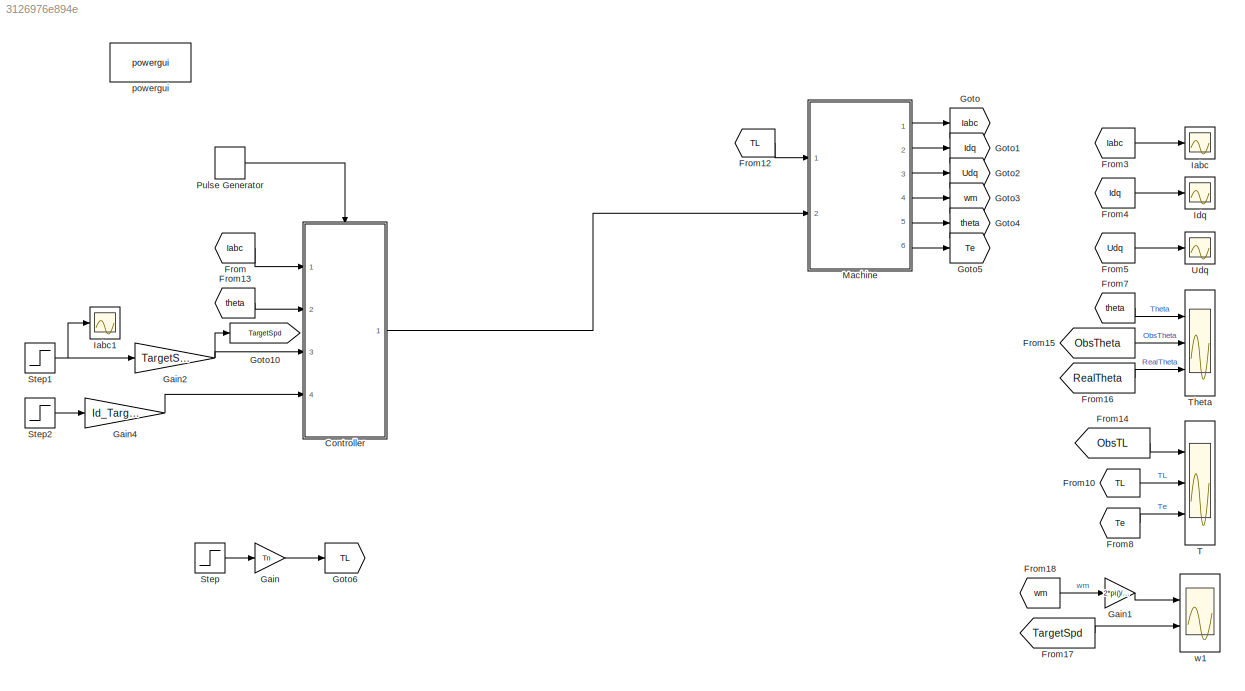
MODEL slx_3126976e894e
KIND model
CONFIG AbsTol = auto
CONFIG EnableMultiTasking = off
CONFIG FixedStep = auto
CONFIG MaxStep = 1e-6
CONFIG MinStep = auto
CONFIG RelTol = 1e-3
CONFIG SampleTimeConstraint = Unconstrained
CONFIG SolverName = ode45
CONFIG StartTime = 0.0
CONFIG StopTime = 0.2
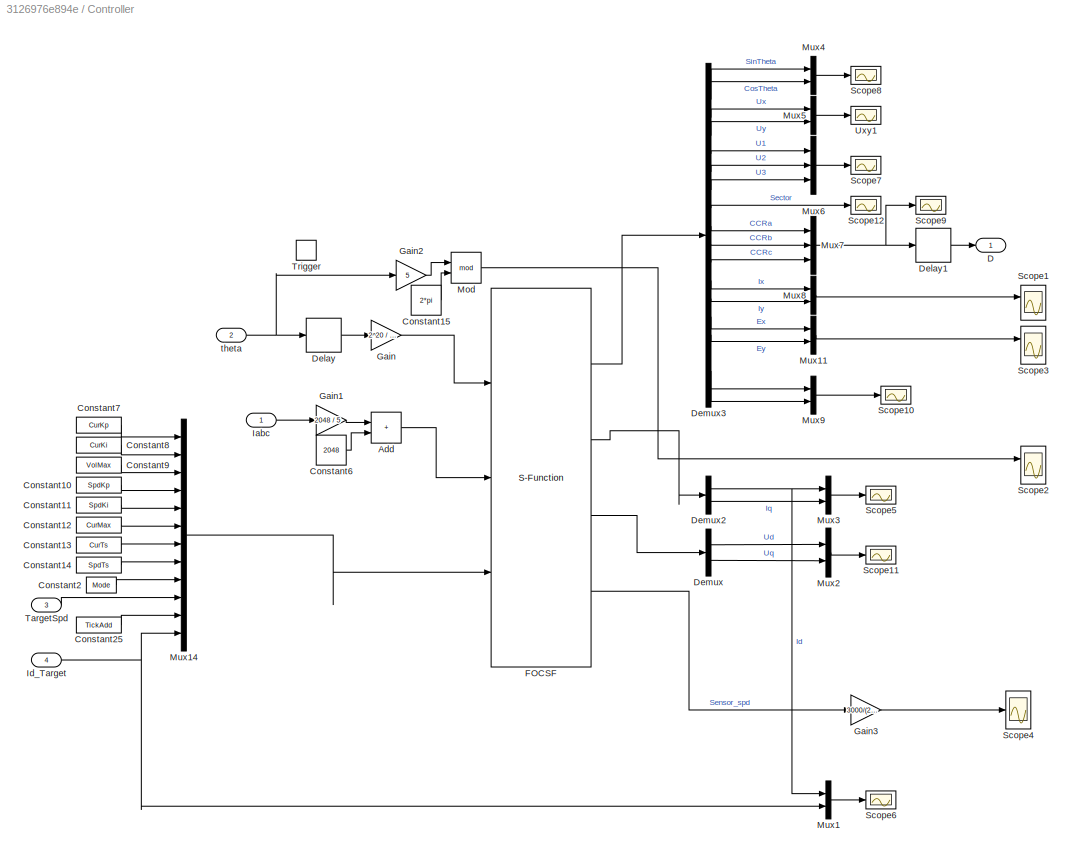
BLOCK [SubSystem] Controller
  Ports = [4, 1, 0, 1]
  RequestExecContextInheritance = off
  TreatAsAtomicUnit = on
BLOCK [Sum] Controller/Add
  IconShape = rectangular
  Ports = [2, 1]
BLOCK [Constant] Controller/Constant10
  Value = SpdKp
BLOCK [Constant] Controller/Constant11
  Value = SpdKi
BLOCK [Constant] Controller/Constant12
  Value = CurMax
BLOCK [Constant] Controller/Constant13
  Value = CurTs
BLOCK [Constant] Controller/Constant14
  Value = SpdTs
BLOCK [Constant] Controller/Constant15
  Value = 2*pi
BLOCK [Constant] Controller/Constant2
  Value = Mode
BLOCK [Constant] Controller/Constant25
  Value = TickAdd
BLOCK [Constant] Controller/Constant6
  Value = 2048
BLOCK [Constant] Controller/Constant7
  Value = CurKp
BLOCK [Constant] Controller/Constant8
  Value = CurKi
BLOCK [Constant] Controller/Constant9
  Value = VolMax
BLOCK [Outport] Controller/D
  VectorParamsAs1DForOutWhenUnconnected = off
BLOCK [Delay] Controller/Delay
  DelayLength = 1
  InputPortMap = u0
  Ports = [1, 1]
BLOCK [Delay] Controller/Delay1
  DelayLength = 1
  InputPortMap = u0
  Ports = [1, 1]
BLOCK [Demux] Controller/Demux
  Outputs = 2
  Ports = [1, 2]
BLOCK [Demux] Controller/Demux2
  Outputs = 2
  Ports = [1, 2]
BLOCK [Demux] Controller/Demux3
  Outputs = 18
  Ports = [1, 18]
BLOCK [S-Function] Controller/FOCSF
  EnableBusSupport = off
  FunctionName = FOCSF_Part2
  Parameters = Np Udc Ls Rs Kt J Ld Lq
  Ports = [3, 4]
  SFcnIsStateOwnerBlock = off
  SFunctionDeploymentMode = off
BLOCK [Gain] Controller/Gain
  Gain = 2^20 / (2 * pi())
BLOCK [Gain] Controller/Gain1
  Gain = 2048 / 5
BLOCK [Gain] Controller/Gain2
  Gain = 5
BLOCK [Gain] Controller/Gain3
  Gain = 3000/(2*pi()*50)
BLOCK [Inport] Controller/Iabc
BLOCK [Inport] Controller/Id_Target
  Port = 4
BLOCK [Math] Controller/Mod
  Operator = mod
  Ports = [2, 1]
BLOCK [Mux] Controller/Mux1
  DisplayOption = bar
  Inputs = 2
  Ports = [2, 1]
BLOCK [Mux] Controller/Mux11
  DisplayOption = bar
  Inputs = 2
  Ports = [2, 1]
BLOCK [Mux] Controller/Mux14
  DisplayOption = bar
  Inputs = 12
  Ports = [12, 1]
BLOCK [Mux] Controller/Mux2
  DisplayOption = bar
  Inputs = 2
  Ports = [2, 1]
BLOCK [Mux] Controller/Mux3
  DisplayOption = bar
  Inputs = 2
  Ports = [2, 1]
BLOCK [Mux] Controller/Mux4
  DisplayOption = bar
  Inputs = 2
  Ports = [2, 1]
BLOCK [Mux] Controller/Mux5
  DisplayOption = bar
  Inputs = 2
  Ports = [2, 1]
BLOCK [Mux] Controller/Mux6
  DisplayOption = bar
  Inputs = 3
  Ports = [3, 1]
BLOCK [Mux] Controller/Mux7
  DisplayOption = bar
  Inputs = 3
  Ports = [3, 1]
BLOCK [Mux] Controller/Mux8
  DisplayOption = bar
  Inputs = 2
  Ports = [2, 1]
BLOCK [Mux] Controller/Mux9
  DisplayOption = bar
  Inputs = 2
  Ports = [2, 1]
BLOCK [Scope] Controller/Scope1
  Floating = off
  NumInputPorts = 2
  Ports = [2]
  ScopeSpecificationString = Simulink.scopes.TimeScopeBlockCfg('CurrentConfiguration', extmgr.ConfigurationSet(extmgr.Configuration('Core','General UI',true),extmgr.Configuration('Core','Source UI',true),extmgr.Configuration('Sources','WiredSimulink',true,'DataLoggingVariableName','ScopeData1'),extmgr.Configuration('Visuals','Time Domain',true,'SerializedDisplays',{struct('MinYLimReal','-1.19518','MaxYLimReal','1.20908','YLab...<+1742ch>
BLOCK [Scope] Controller/Scope10
  Floating = off
  NumInputPorts = 1
  Ports = [1]
  ScopeSpecificationString = Simulink.scopes.TimeScopeBlockCfg('CurrentConfiguration', extmgr.ConfigurationSet(extmgr.Configuration('Core','General UI',true),extmgr.Configuration('Core','Source UI',true),extmgr.Configuration('Sources','WiredSimulink',true,'DataLoggingVariableName','ScopeData1'),extmgr.Configuration('Visuals','Time Domain',true,'SerializedDisplays',{struct('MinYLimReal','-2.62046','MaxYLimReal','12.3498','YLab...<+1574ch>
BLOCK [Scope] Controller/Scope11
  Floating = off
  NumInputPorts = 1
  Ports = [1]
  ScopeSpecificationString = Simulink.scopes.TimeScopeBlockCfg('CurrentConfiguration', extmgr.ConfigurationSet(extmgr.Configuration('Core','General UI',true),extmgr.Configuration('Core','Source UI',true),extmgr.Configuration('Sources','WiredSimulink',true,'DataLoggingVariableName','ScopeData9'),extmgr.Configuration('Visuals','Time Domain',true,'SerializedDisplays',{struct('MinYLimReal','-2.88359','MaxYLimReal','13.78925','YLa...<+1741ch>
BLOCK [Scope] Controller/Scope12
  Floating = off
  NumInputPorts = 1
  Ports = [1]
  ScopeSpecificationString = Simulink.scopes.TimeScopeBlockCfg('CurrentConfiguration', extmgr.ConfigurationSet(extmgr.Configuration('Core','General UI',true),extmgr.Configuration('Core','Source UI',true),extmgr.Configuration('Sources','WiredSimulink',true,'DataLoggingVariableName','ScopeData4'),extmgr.Configuration('Visuals','Time Domain',true,'SerializedDisplays',{struct('MinYLimReal','0.9','MaxYLimReal','1.1','YLabelReal','...<+1402ch>
BLOCK [Scope] Controller/Scope2
  Floating = off
  NumInputPorts = 2
  Ports = [2]
  ScopeSpecificationString = Simulink.scopes.TimeScopeBlockCfg('CurrentConfiguration', extmgr.ConfigurationSet(extmgr.Configuration('Core','General UI',true),extmgr.Configuration('Core','Source UI',true),extmgr.Configuration('Sources','WiredSimulink',true,'DataLoggingVariableName','ThetaE','DataLogging',true),extmgr.Configuration('Visuals','Time Domain',true,'SerializedDisplays',{struct('MinYLimReal','-0.78537','MaxYLimReal',...<+1766ch>
BLOCK [Scope] Controller/Scope3
  Floating = off
  NumInputPorts = 2
  Ports = [2]
  ScopeSpecificationString = Simulink.scopes.TimeScopeBlockCfg('CurrentConfiguration', extmgr.ConfigurationSet(extmgr.Configuration('Core','General UI',true),extmgr.Configuration('Core','Source UI',true),extmgr.Configuration('Sources','WiredSimulink',true,'DataLoggingVariableName','ScopeData3','DataLogging',true),extmgr.Configuration('Visuals','Time Domain',true,'SerializedDisplays',{struct('MinYLimReal','-23.03112','MaxYLimR...<+1780ch>
BLOCK [Scope] Controller/Scope4
  Floating = off
  NumInputPorts = 1
  Ports = [1]
  ScopeSpecificationString = Simulink.scopes.TimeScopeBlockCfg('CurrentConfiguration', extmgr.ConfigurationSet(extmgr.Configuration('Core','General UI',true),extmgr.Configuration('Core','Source UI',true),extmgr.Configuration('Sources','WiredSimulink',true,'DataLoggingVariableName','SpdE','DataLogging',true,'DataLoggingSaveFormat','Array'),extmgr.Configuration('Visuals','Time Domain',true,'SerializedDisplays',{struct('MinYLimR...<+1807ch>
BLOCK [Scope] Controller/Scope5
  Floating = off
  NumInputPorts = 1
  Ports = [1]
  ScopeSpecificationString = Simulink.scopes.TimeScopeBlockCfg('CurrentConfiguration', extmgr.ConfigurationSet(extmgr.Configuration('Core','General UI',true),extmgr.Configuration('Core','Source UI',true),extmgr.Configuration('Sources','WiredSimulink',true,'DataLoggingVariableName','ScopeData1'),extmgr.Configuration('Visuals','Time Domain',true,'SerializedDisplays',{struct('MinYLimReal','-0.14901','MaxYLimReal','1.24268','YLab...<+1534ch>
BLOCK [Scope] Controller/Scope6
  Floating = off
  NumInputPorts = 1
  Ports = [1]
  ScopeSpecificationString = Simulink.scopes.TimeScopeBlockCfg('CurrentConfiguration', extmgr.ConfigurationSet(extmgr.Configuration('Core','General UI',true),extmgr.Configuration('Core','Source UI',true),extmgr.Configuration('Sources','WiredSimulink',true,'DataLoggingVariableName','TargetId','DataLogging',true,'DataLoggingSaveFormat','Array'),extmgr.Configuration('Visuals','Time Domain',true,'SerializedDisplays',{struct('MinY...<+1616ch>
BLOCK [Scope] Controller/Scope7
  Floating = off
  NumInputPorts = 1
  Ports = [1]
  ScopeSpecificationString = Simulink.scopes.TimeScopeBlockCfg('CurrentConfiguration', extmgr.ConfigurationSet(extmgr.Configuration('Core','General UI',true),extmgr.Configuration('Core','Source UI',true),extmgr.Configuration('Sources','WiredSimulink',true,'DataLoggingVariableName','ScopeData3'),extmgr.Configuration('Visuals','Time Domain',true,'SerializedDisplays',{struct('MinYLimReal','-10.825','MaxYLimReal','10.825','YLabel...<+1557ch>
BLOCK [Scope] Controller/Scope8
  Floating = off
  NumInputPorts = 1
  Ports = [1]
  ScopeSpecificationString = Simulink.scopes.TimeScopeBlockCfg('CurrentConfiguration', extmgr.ConfigurationSet(extmgr.Configuration('Core','General UI',true),extmgr.Configuration('Core','Source UI',true),extmgr.Configuration('Sources','WiredSimulink',true,'DataLoggingVariableName','ScopeData2'),extmgr.Configuration('Visuals','Time Domain',true,'SerializedDisplays',{struct('MinYLimReal','-1.25','MaxYLimReal','1.25','YLabelReal...<+1510ch>
BLOCK [Scope] Controller/Scope9
  Floating = off
  NumInputPorts = 1
  Ports = [1]
  ScopeSpecificationString = Simulink.scopes.TimeScopeBlockCfg('CurrentConfiguration', extmgr.ConfigurationSet(extmgr.Configuration('Core','General UI',true),extmgr.Configuration('Core','Source UI',true),extmgr.Configuration('Sources','WiredSimulink',true,'DataLoggingVariableName','ScopeData3'),extmgr.Configuration('Visuals','Time Domain',true,'SerializedDisplays',{struct('MinYLimReal','-0.08203','MaxYLimReal','0.73827','YLab...<+1545ch>
BLOCK [Inport] Controller/TargetSpd
  Port = 3
BLOCK [TriggerPort] Controller/Trigger
  Ports = []
  StatesWhenEnabling = held
  VariantControl = Variant
BLOCK [Scope] Controller/Uxy1
  Floating = off
  NumInputPorts = 1
  Ports = [1]
  ScopeSpecificationString = Simulink.scopes.TimeScopeBlockCfg('CurrentConfiguration', extmgr.ConfigurationSet(extmgr.Configuration('Core','General UI',true,'FigureColor',[1 1 1]),extmgr.Configuration('Core','Source UI',true),extmgr.Configuration('Sources','WiredSimulink',true,'DataLoggingVariableName','ScopeData1'),extmgr.Configuration('Visuals','Time Domain',true,'SerializedDisplays',{struct('MinYLimReal','-12.5','MaxYLimRe...<+2094ch>
BLOCK [Inport] Controller/theta
  Port = 2
BLOCK [From] From
  GotoTag = Iabc
BLOCK [From] From10
  GotoTag = TL
  TagVisibility = global
BLOCK [From] From12
  GotoTag = TL
  TagVisibility = global
BLOCK [From] From13
  GotoTag = theta
BLOCK [From] From14
  GotoTag = ObsTL
BLOCK [From] From15
  GotoTag = ObsTheta
BLOCK [From] From16
  GotoTag = RealTheta
BLOCK [From] From17
  GotoTag = TargetSpd
BLOCK [From] From18
  GotoTag = wm
BLOCK [From] From3
  GotoTag = Iabc
BLOCK [From] From4
  GotoTag = Idq
BLOCK [From] From5
  GotoTag = Udq
BLOCK [From] From7
  GotoTag = theta
BLOCK [From] From8
  GotoTag = Te
BLOCK [Gain] Gain
  Gain = Tn
BLOCK [Gain] Gain1
  Gain = 2*pi()/60
BLOCK [Gain] Gain2
  Gain = TargetSpd
BLOCK [Gain] Gain4
  Gain = Id_Target
BLOCK [Goto] Goto
  GotoTag = Iabc
BLOCK [Goto] Goto1
  GotoTag = Idq
BLOCK [Goto] Goto10
  GotoTag = TargetSpd
BLOCK [Goto] Goto2
  GotoTag = Udq
BLOCK [Goto] Goto3
  GotoTag = wm
BLOCK [Goto] Goto4
  GotoTag = theta
BLOCK [Goto] Goto5
  GotoTag = Te
BLOCK [Goto] Goto6
  GotoTag = TL
  TagVisibility = global
BLOCK [Scope] Iabc
  Floating = off
  NumInputPorts = 1
  Ports = [1]
  ScopeSpecificationString = Simulink.scopes.TimeScopeBlockCfg('CurrentConfiguration', extmgr.ConfigurationSet(extmgr.Configuration('Core','General UI',true),extmgr.Configuration('Core','Source UI',true),extmgr.Configuration('Sources','WiredSimulink',true),extmgr.Configuration('Visuals','Time Domain',true,'SerializedDisplays',{struct('MinYLimReal','-1.28948','MaxYLimReal','1.29094','YLabelReal','','MinYLimMag','0.00000','MaxY...<+1551ch>
BLOCK [Scope] Iabc1
  Floating = off
  NumInputPorts = 1
  Ports = [1]
  ScopeSpecificationString = Simulink.scopes.TimeScopeBlockCfg('CurrentConfiguration', extmgr.ConfigurationSet(extmgr.Configuration('Core','General UI',true),extmgr.Configuration('Core','Source UI',true),extmgr.Configuration('Sources','WiredSimulink',true,'DataLoggingVariableName','ScopeData2'),extmgr.Configuration('Visuals','Time Domain',true,'SerializedDisplays',{struct('MinYLimReal','-0.12498','MaxYLimReal','1.12486','YLab...<+1499ch>
BLOCK [Scope] Idq
  Floating = off
  NumInputPorts = 1
  Ports = [1]
  ScopeSpecificationString = Simulink.scopes.TimeScopeBlockCfg('CurrentConfiguration', extmgr.ConfigurationSet(extmgr.Configuration('Core','General UI',true),extmgr.Configuration('Core','Source UI',true),extmgr.Configuration('Sources','WiredSimulink',true,'DataLoggingVariableName','ScopeData1'),extmgr.Configuration('Visuals','Time Domain',true,'SerializedDisplays',{struct('MinYLimReal','-0.15991','MaxYLimReal','1.13341','YLab...<+1557ch>
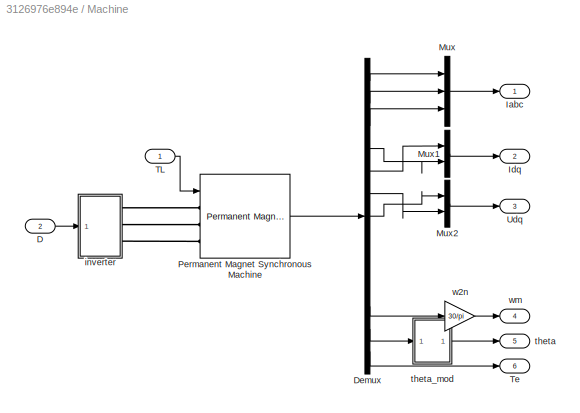
BLOCK [SubSystem] Machine
  Ports = [2, 6]
  RequestExecContextInheritance = off
BLOCK [Inport] Machine/D
  Port = 2
BLOCK [Demux] Machine/Demux
  Outputs = 13
  Ports = [1, 13]
BLOCK [Outport] Machine/Iabc
  VectorParamsAs1DForOutWhenUnconnected = off
BLOCK [Outport] Machine/Idq
  Port = 2
  VectorParamsAs1DForOutWhenUnconnected = off
BLOCK [Mux] Machine/Mux
  DisplayOption = bar
  Inputs = 3
  Ports = [3, 1]
BLOCK [Mux] Machine/Mux1
  DisplayOption = bar
  Inputs = 2
  Ports = [2, 1]
BLOCK [Mux] Machine/Mux2
  DisplayOption = bar
  Inputs = 2
  Ports = [2, 1]
BLOCK [Reference] Machine/Permanent Magnet Synchronous Machine  REF=spsPermanentMagnetSynchronousMachineLib/Permanent Magnet
Synchronous Machine
  Ports = [1, 1, 0, 0, 0, 3]
  SourceBlock = spsPermanentMagnetSynchronousMachineLib/Permanent Magnet\nSynchronous Machine
  SourceProductBaseCode = PS
  SourceType = Permanent Magnet Synchronous Machine
BLOCK [Inport] Machine/TL
BLOCK [Outport] Machine/Te
  Port = 6
  VectorParamsAs1DForOutWhenUnconnected = off
BLOCK [Outport] Machine/Udq
  Port = 3
  VectorParamsAs1DForOutWhenUnconnected = off
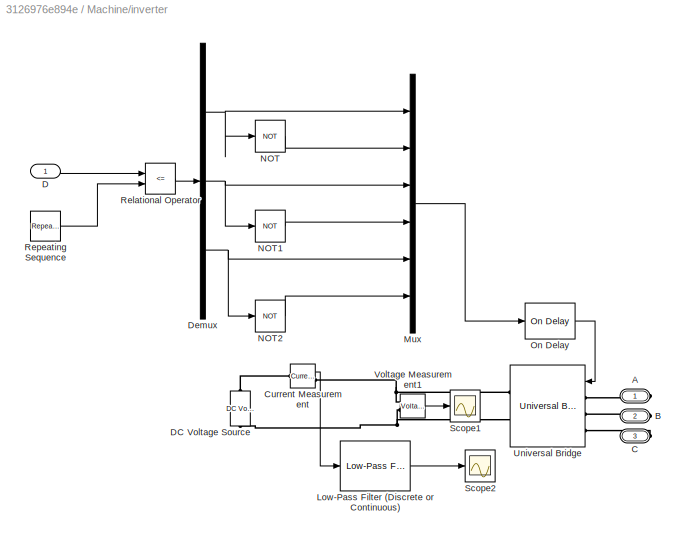
BLOCK [SubSystem] Machine/inverter
  Ports = [1, 0, 0, 0, 0, 0, 3]
  RequestExecContextInheritance = off
BLOCK [PMIOPort] Machine/inverter/A
  Side = Right
BLOCK [PMIOPort] Machine/inverter/B
  Port = 2
  Side = Right
BLOCK [PMIOPort] Machine/inverter/C
  Port = 3
  Side = Right
BLOCK [Reference] Machine/inverter/Current Measurement  REF=spsCurrentMeasurementLib/Current Measurement
  Ports = [0, 1, 0, 0, 0, 1, 1]
  SourceBlock = spsCurrentMeasurementLib/Current Measurement
  SourceProductBaseCode = PS
  SourceType = Current Measurement
  UserDataPersistent = on
BLOCK [Inport] Machine/inverter/D
BLOCK [Reference] Machine/inverter/DC Voltage Source  REF=spsDCVoltageSourceLib/DC Voltage Source
  NameLocation = right
  Ports = [0, 0, 0, 0, 0, 1, 1]
  SourceBlock = spsDCVoltageSourceLib/DC Voltage Source
  SourceProductBaseCode = PS
  SourceType = DC Voltage Source
BLOCK [Demux] Machine/inverter/Demux
  Outputs = 3
  Ports = [1, 3]
BLOCK [Reference] Machine/inverter/Low-Pass Filter (Discrete or Continuous)  REF=eeGeneralControl/Low-Pass Filter
(Discrete or Continuous)
  Ports = [1, 1]
  SourceBlock = eeGeneralControl/Low-Pass Filter\n(Discrete or Continuous)
  SourceProductBaseCode = PS
  SourceType = Low-Pass Filter (Discrete or Continuous)
BLOCK [Mux] Machine/inverter/Mux
  DisplayOption = bar
  Inputs = 6
  Ports = [6, 1]
BLOCK [Logic] Machine/inverter/NOT
  AllPortsSameDT = off
  IconShape = distinctive
  Operator = NOT
  OutDataTypeStr = boolean
  Ports = [1, 1]
BLOCK [Logic] Machine/inverter/NOT1
  AllPortsSameDT = off
  IconShape = distinctive
  Operator = NOT
  OutDataTypeStr = boolean
  Ports = [1, 1]
BLOCK [Logic] Machine/inverter/NOT2
  AllPortsSameDT = off
  IconShape = distinctive
  Operator = NOT
  OutDataTypeStr = boolean
  Ports = [1, 1]
BLOCK [Reference] Machine/inverter/On Delay  REF=spsOnDelayLib/On Delay
  Ports = [1, 1]
  SourceBlock = spsOnDelayLib/On Delay
  SourceProductBaseCode = PS
  SourceType = On/Off Delay
BLOCK [RelationalOperator] Machine/inverter/Relational Operator
  InputSameDT = off
  Operator = <=
  OutDataTypeStr = boolean
  Ports = [2, 1]
  RndMeth = Simplest
BLOCK [Reference] Machine/inverter/Repeating Sequence  REF=simulink/Sources/Repeating
Sequence
  Ports = [0, 1]
  SourceBlock = simulink/Sources/Repeating\nSequence
  SourceProductBaseCode = SL
  SourceType = Repeating table
BLOCK [Scope] Machine/inverter/Scope1
  Floating = off
  NumInputPorts = 1
  Ports = [1]
  ScopeSpecificationString = Simulink.scopes.TimeScopeBlockCfg('CurrentConfiguration', extmgr.ConfigurationSet(extmgr.Configuration('Core','General UI',true),extmgr.Configuration('Core','Source UI',true),extmgr.Configuration('Sources','WiredSimulink',true,'DataLoggingVariableName','ScopeData1'),extmgr.Configuration('Visuals','Time Domain',true,'SerializedDisplays',{struct('MinYLimReal','-31.67772','MaxYLimReal','601.21776','Y...<+1489ch>
BLOCK [Scope] Machine/inverter/Scope2
  Floating = off
  NumInputPorts = 1
  Ports = [1]
  ScopeSpecificationString = Simulink.scopes.TimeScopeBlockCfg('CurrentConfiguration', extmgr.ConfigurationSet(extmgr.Configuration('Core','General UI',true),extmgr.Configuration('Core','Source UI',true),extmgr.Configuration('Sources','WiredSimulink',true,'DataLoggingVariableName','ScopeData5'),extmgr.Configuration('Visuals','Time Domain',true,'SerializedDisplays',{struct('MinYLimReal','0.66833','MaxYLimReal','0.67508','YLabe...<+1474ch>
BLOCK [Reference] Machine/inverter/Universal Bridge  REF=spsUniversalBridgeLib/Universal Bridge
  Ports = [1, 0, 0, 0, 0, 3, 2]
  SourceBlock = spsUniversalBridgeLib/Universal Bridge
  SourceProductBaseCode = PS
  SourceType = Universal Bridge
BLOCK [Reference] Machine/inverter/Voltage Measurement1  REF=spsVoltageMeasurementLib/Voltage Measurement
  Ports = [0, 1, 0, 0, 0, 2]
  SourceBlock = spsVoltageMeasurementLib/Voltage Measurement
  SourceProductBaseCode = PS
  SourceType = Voltage Measurement
  UserDataPersistent = on
BLOCK [Outport] Machine/theta
  Port = 5
  VectorParamsAs1DForOutWhenUnconnected = off
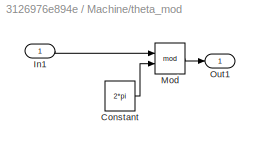
BLOCK [SubSystem] Machine/theta_mod
  Ports = [1, 1]
  RequestExecContextInheritance = off
BLOCK [Constant] Machine/theta_mod/Constant
  Value = 2*pi
BLOCK [Inport] Machine/theta_mod/In1
BLOCK [Math] Machine/theta_mod/Mod
  Operator = mod
  Ports = [2, 1]
  SignedPower = on
BLOCK [Outport] Machine/theta_mod/Out1
  VectorParamsAs1DForOutWhenUnconnected = off
BLOCK [Gain] Machine/w2n
  Gain = 30/pi
BLOCK [Outport] Machine/wm
  Port = 4
  VectorParamsAs1DForOutWhenUnconnected = off
BLOCK [DiscretePulseGenerator] Pulse Generator
  Period = CurTs
  Ports = [0, 1]
  PulseType = Time based
  PulseWidth = 50
BLOCK [Step] Step
  SampleTime = 0
  Time = 0
BLOCK [Step] Step1
  SampleTime = 0
  Time = 0.1
BLOCK [Step] Step2
  SampleTime = 0
  Time = 0.1
BLOCK [Scope] T
  Floating = off
  NumInputPorts = 3
  Ports = [3]
  ScopeSpecificationString = Simulink.scopes.TimeScopeBlockCfg('CurrentConfiguration', extmgr.ConfigurationSet(extmgr.Configuration('Core','General UI',true),extmgr.Configuration('Core','Source UI',true),extmgr.Configuration('Sources','WiredSimulink',true,'DataLoggingVariableName','ScopeData5'),extmgr.Configuration('Visuals','Time Domain',true,'SerializedDisplays',{struct('MinYLimReal','-0.00946','MaxYLimReal','0.01332','YLab...<+1568ch>
BLOCK [Scope] Theta
  Floating = off
  NumInputPorts = 3
  Ports = [3]
  ScopeSpecificationString = Simulink.scopes.TimeScopeBlockCfg('CurrentConfiguration', extmgr.ConfigurationSet(extmgr.Configuration('Core','General UI',true),extmgr.Configuration('Core','Source UI',true),extmgr.Configuration('Sources','WiredSimulink',true,'DataLoggingVariableName','ScopeData6'),extmgr.Configuration('Visuals','Time Domain',true,'SerializedDisplays',{struct('MinYLimReal','-0.7854','MaxYLimReal','7.06858','YLabe...<+1557ch>
BLOCK [Scope] Udq
  Floating = off
  NumInputPorts = 1
  Ports = [1]
  ScopeSpecificationString = Simulink.scopes.TimeScopeBlockCfg('CurrentConfiguration', extmgr.ConfigurationSet(extmgr.Configuration('Core','General UI',true),extmgr.Configuration('Core','Source UI',true),extmgr.Configuration('Sources','WiredSimulink',true,'DataLoggingVariableName','ScopeData2'),extmgr.Configuration('Visuals','Time Domain',true,'SerializedDisplays',{struct('MinYLimReal','-4.10533','MaxYLimReal','36.0117','YLab...<+1544ch>
BLOCK [Reference] powergui  REF=spspowerguiLib/powergui
  Ports = []
  Priority = 1
  SourceBlock = spspowerguiLib/powergui
  SourceProductBaseCode = PS
  SourceType = PSB option menu block
BLOCK [Scope] w1
  Floating = off
  NumInputPorts = 2
  Ports = [2]
  ScopeSpecificationString = Simulink.scopes.TimeScopeBlockCfg('CurrentConfiguration', extmgr.ConfigurationSet(extmgr.Configuration('Core','General UI',true),extmgr.Configuration('Core','Source UI',true),extmgr.Configuration('Sources','WiredSimulink',true,'DataLoggingVariableName','ScopeData1'),extmgr.Configuration('Visuals','Time Domain',true,'SerializedDisplays',{struct('MinYLimReal','-39.39385','MaxYLimReal','353.44294','Y...<+1655ch>
LINE Controller/Add:1 -> Controller/FOCSF:2
LINE Controller/Constant10:1 -> Controller/Mux14:4
LINE Controller/Constant11:1 -> Controller/Mux14:5
LINE Controller/Constant12:1 -> Controller/Mux14:6
LINE Controller/Constant13:1 -> Controller/Mux14:7
LINE Controller/Constant14:1 -> Controller/Mux14:8
LINE Controller/Constant15:1 -> Controller/Mod:2
LINE Controller/Constant25:1 -> Controller/Mux14:11
LINE Controller/Constant2:1 -> Controller/Mux14:9
LINE Controller/Constant6:1 -> Controller/Add:2
LINE Controller/Constant7:1 -> Controller/Mux14:1
LINE Controller/Constant8:1 -> Controller/Mux14:2
LINE Controller/Constant9:1 -> Controller/Mux14:3
LINE Controller/Delay1:1 -> Controller/D:1
LINE Controller/Delay:1 -> Controller/Gain:1
NET Controller/Demux2:1 -> Controller/Mux1:1, Controller/Mux3:1
LINE Controller/Demux2:2 -> Controller/Mux3:2
LINE Controller/Demux3:1 -> Controller/Mux4:1
LINE Controller/Demux3:10 -> Controller/Mux7:2
LINE Controller/Demux3:11 -> Controller/Mux7:3
LINE Controller/Demux3:12 -> Controller/Mux8:1
LINE Controller/Demux3:13 -> Controller/Mux8:2
LINE Controller/Demux3:14 -> Controller/Mux11:1
LINE Controller/Demux3:15 -> Controller/Mux11:2
LINE Controller/Demux3:17 -> Controller/Mux9:1
LINE Controller/Demux3:18 -> Controller/Mux9:2
LINE Controller/Demux3:2 -> Controller/Mux4:2
LINE Controller/Demux3:3 -> Controller/Mux5:1
LINE Controller/Demux3:4 -> Controller/Mux5:2
LINE Controller/Demux3:5 -> Controller/Mux6:1
LINE Controller/Demux3:6 -> Controller/Mux6:2
LINE Controller/Demux3:7 -> Controller/Mux6:3
LINE Controller/Demux3:8 -> Controller/Scope12:1
LINE Controller/Demux3:9 -> Controller/Mux7:1
LINE Controller/Demux:1 -> Controller/Mux2:1
LINE Controller/Demux:2 -> Controller/Mux2:2
LINE Controller/FOCSF:1 -> Controller/Demux3:1
LINE Controller/FOCSF:2 -> Controller/Demux2:1
LINE Controller/FOCSF:3 -> Controller/Demux:1
LINE Controller/FOCSF:4 -> Controller/Gain3:1
LINE Controller/Gain1:1 -> Controller/Add:1
LINE Controller/Gain2:1 -> Controller/Mod:1
LINE Controller/Gain3:1 -> Controller/Scope4:1
LINE Controller/Gain:1 -> Controller/FOCSF:1
LINE Controller/Iabc:1 -> Controller/Gain1:1
NET Controller/Id_Target:1 -> Controller/Mux14:12, Controller/Mux1:2
LINE Controller/Mod:1 -> Controller/Scope2:1
LINE Controller/Mux11:1 -> Controller/Scope3:1
LINE Controller/Mux14:1 -> Controller/FOCSF:3
LINE Controller/Mux1:1 -> Controller/Scope6:1
LINE Controller/Mux2:1 -> Controller/Scope11:1
LINE Controller/Mux3:1 -> Controller/Scope5:1
LINE Controller/Mux4:1 -> Controller/Scope8:1
LINE Controller/Mux5:1 -> Controller/Uxy1:1
LINE Controller/Mux6:1 -> Controller/Scope7:1
NET Controller/Mux7:1 -> Controller/Delay1:1, Controller/Scope9:1
LINE Controller/Mux8:1 -> Controller/Scope1:1
LINE Controller/Mux9:1 -> Controller/Scope10:1
LINE Controller/TargetSpd:1 -> Controller/Mux14:10
NET Controller/theta:1 -> Controller/Delay:1, Controller/Gain2:1
LINE Controller:1 -> Machine:2
LINE From10:1 -> T:2
LINE From12:1 -> Machine:1
LINE From13:1 -> Controller:2
LINE From14:1 -> T:1
LINE From15:1 -> Theta:2
LINE From16:1 -> Theta:3
LINE From17:1 -> w1:2
LINE From18:1 -> Gain1:1
LINE From3:1 -> Iabc:1
LINE From4:1 -> Idq:1
LINE From5:1 -> Udq:1
LINE From7:1 -> Theta:1
LINE From8:1 -> T:3
LINE From:1 -> Controller:1
LINE Gain1:1 -> w1:1
NET Gain2:1 -> Controller:3, Goto10:1
LINE Gain4:1 -> Controller:4
LINE Gain:1 -> Goto6:1
LINE Machine/D:1 -> Machine/inverter:1
LINE Machine/Demux:1 -> Machine/Mux:1
LINE Machine/Demux:11 -> Machine/w2n:1
LINE Machine/Demux:12 -> Machine/theta_mod:1
LINE Machine/Demux:13 -> Machine/Te:1
LINE Machine/Demux:2 -> Machine/Mux:2
LINE Machine/Demux:3 -> Machine/Mux:3
LINE Machine/Demux:4 -> Machine/Mux1:2
LINE Machine/Demux:5 -> Machine/Mux1:1
LINE Machine/Demux:6 -> Machine/Mux2:2
LINE Machine/Demux:7 -> Machine/Mux2:1
LINE Machine/Mux1:1 -> Machine/Idq:1
LINE Machine/Mux2:1 -> Machine/Udq:1
LINE Machine/Mux:1 -> Machine/Iabc:1
LINE Machine/Permanent Magnet Synchronous Machine:1 -> Machine/Demux:1
LINE Machine/TL:1 -> Machine/Permanent Magnet Synchronous Machine:1
LINE Machine/inverter/Current Measurement:1 -> Machine/inverter/Low-Pass Filter (Discrete or Continuous):1
LINE Machine/inverter/D:1 -> Machine/inverter/Relational Operator:1
NET Machine/inverter/Demux:1 -> Machine/inverter/Mux:1, Machine/inverter/NOT:1
NET Machine/inverter/Demux:2 -> Machine/inverter/Mux:3, Machine/inverter/NOT1:1
NET Machine/inverter/Demux:3 -> Machine/inverter/Mux:5, Machine/inverter/NOT2:1
LINE Machine/inverter/Low-Pass Filter (Discrete or Continuous):1 -> Machine/inverter/Scope2:1
LINE Machine/inverter/Mux:1 -> Machine/inverter/On Delay:1
LINE Machine/inverter/NOT1:1 -> Machine/inverter/Mux:4
LINE Machine/inverter/NOT2:1 -> Machine/inverter/Mux:6
LINE Machine/inverter/NOT:1 -> Machine/inverter/Mux:2
LINE Machine/inverter/On Delay:1 -> Machine/inverter/Universal Bridge:1
LINE Machine/inverter/Relational Operator:1 -> Machine/inverter/Demux:1
LINE Machine/inverter/Repeating Sequence:1 -> Machine/inverter/Relational Operator:2
LINE Machine/inverter/Voltage Measurement1:1 -> Machine/inverter/Scope1:1
LINE Machine/theta_mod/Constant:1 -> Machine/theta_mod/Mod:2
LINE Machine/theta_mod/In1:1 -> Machine/theta_mod/Mod:1
LINE Machine/theta_mod/Mod:1 -> Machine/theta_mod/Out1:1
LINE Machine/theta_mod:1 -> Machine/theta:1
LINE Machine/w2n:1 -> Machine/wm:1
LINE Machine:1 -> Goto:1
LINE Machine:2 -> Goto1:1
LINE Machine:3 -> Goto2:1
LINE Machine:4 -> Goto3:1
LINE Machine:5 -> Goto4:1
LINE Machine:6 -> Goto5:1
LINE Pulse Generator:1 -> Controller:trigger
NET Step1:1 -> Gain2:1, Iabc1:1
LINE Step2:1 -> Gain4:1
LINE Step:1 -> Gain:1
PLINE Machine/Permanent Magnet Synchronous Machine:LConn1 -- Machine/inverter:RConn1
PLINE Machine/Permanent Magnet Synchronous Machine:LConn2 -- Machine/inverter:RConn2
PLINE Machine/Permanent Magnet Synchronous Machine:LConn3 -- Machine/inverter:RConn3
PLINE Machine/inverter/A:RConn1 -- Machine/inverter/Universal Bridge:LConn1
PLINE Machine/inverter/B:RConn1 -- Machine/inverter/Universal Bridge:LConn2
PLINE Machine/inverter/C:RConn1 -- Machine/inverter/Universal Bridge:LConn3
PLINE Machine/inverter/Current Measurement:LConn1 -- Machine/inverter/DC Voltage Source:RConn1
PNET net1: Machine/inverter/Current Measurement:RConn1 -- Machine/inverter/Universal Bridge:RConn1 -- Machine/inverter/Voltage Measurement1:LConn1
PNET net2: Machine/inverter/DC Voltage Source:LConn1 -- Machine/inverter/Universal Bridge:RConn2 -- Machine/inverter/Voltage Measurement1:LConn2
note: NET lines group one-source signal fan-out (src -> all destinations, sorted); 1:1 wires keep LINE; PNET lines group multi-terminal physical nets as a canonical sorted terminal list (undirected conserving connections); 2-terminal nets keep the pairwise PLINE form
